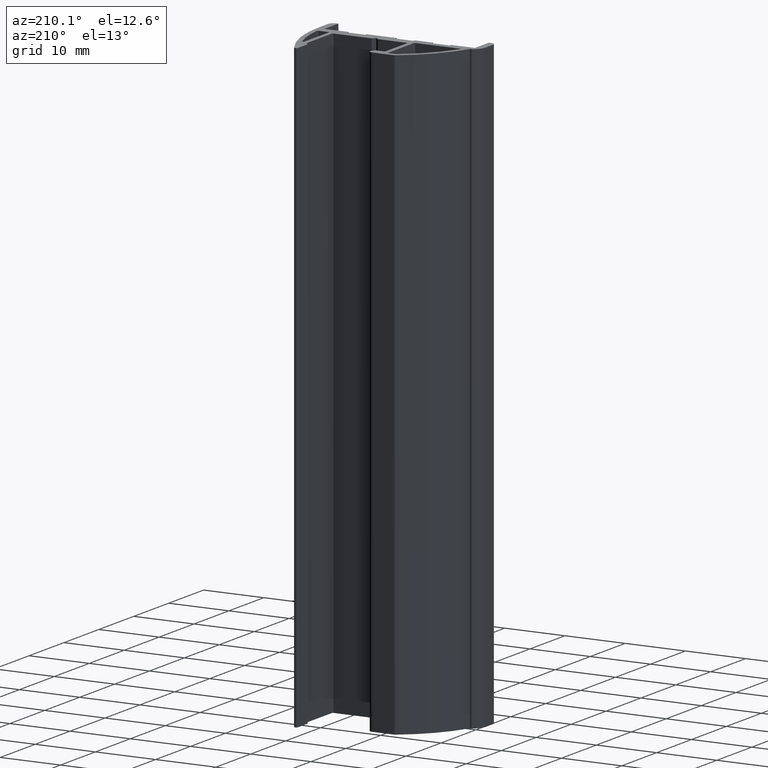
[diagram: clean part render]
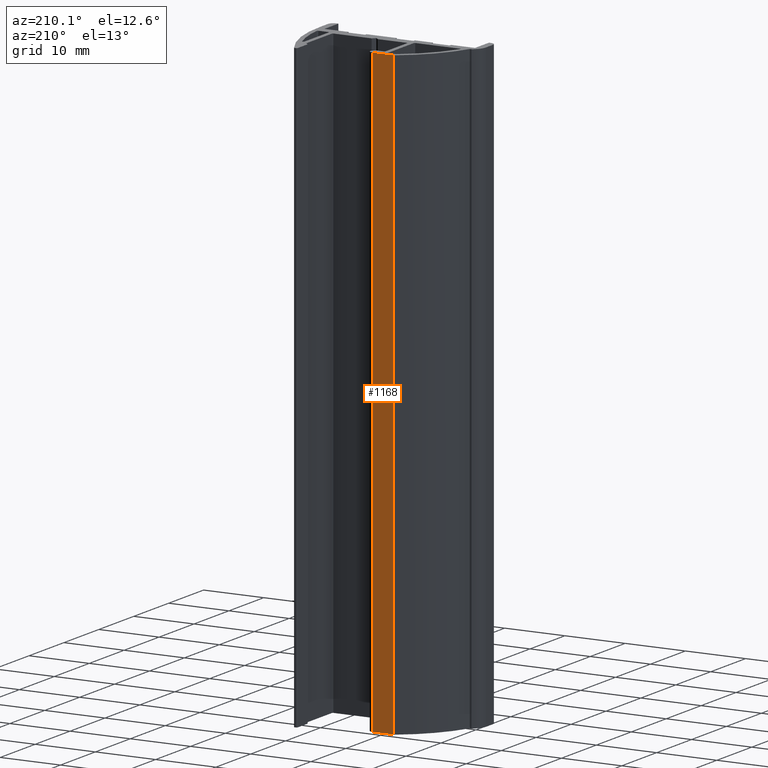
[diagram: same view with one face highlighted and labeled with its STEP entity id]
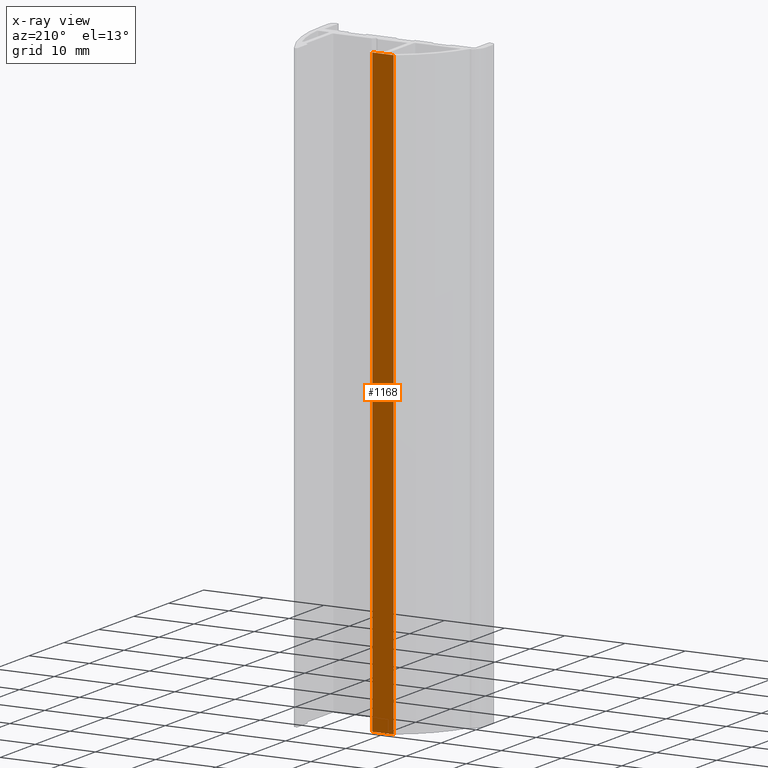
[diagram: x-ray of the same camera — body ghosted, the highlighted face saturated]
A machine part, auxiliary view. The second image highlights one B-rep face of the part: STEP entity #1168.
The next image is the same camera in x-ray: the body ghosted, the highlighted face saturated — about 0% of this face is hidden behind the body in this view.
In plain terms, the highlighted planar face has unit normal (-0, 1, 0).
Its self-contained STEP definition (entity closure, byte-faithful):
#123=FACE_OUTER_BOUND('',#184,.T.);
#184=EDGE_LOOP('',(#964,#965,#966,#967));
#248=LINE('',#1764,#377);
#305=LINE('',#1899,#434);
#306=LINE('',#1902,#435);
#307=LINE('',#1903,#436);
#377=VECTOR('',#1415,3.53870038560117);
#434=VECTOR('',#1546,100.);
#435=VECTOR('',#1549,3.53870038560117);
#436=VECTOR('',#1550,100.);
#517=VERTEX_POINT('',#1761);
#518=VERTEX_POINT('',#1763);
#559=VERTEX_POINT('',#1897);
#560=VERTEX_POINT('',#1901);
#645=EDGE_CURVE('',#517,#518,#248,.T.);
#713=EDGE_CURVE('',#517,#559,#305,.T.);
#714=EDGE_CURVE('',#560,#559,#306,.T.);
#715=EDGE_CURVE('',#518,#560,#307,.T.);
#964=ORIENTED_EDGE('',*,*,#713,.T.);
#965=ORIENTED_EDGE('',*,*,#714,.F.);
#966=ORIENTED_EDGE('',*,*,#715,.F.);
#967=ORIENTED_EDGE('',*,*,#645,.F.);
#1115=PLANE('',#1265);
#1168=ADVANCED_FACE('',(#123),#1115,.T.);
#1265=AXIS2_PLACEMENT_3D('',#1900,#1547,#1548);
#1415=DIRECTION('',(1.,1.56868751751718E-16,0.));
#1546=DIRECTION('',(0.,0.,1.));
#1547=DIRECTION('center_axis',(-1.56868751751718E-16,1.,0.));
#1548=DIRECTION('ref_axis',(-1.,-1.77635683940025E-16,0.));
#1549=DIRECTION('',(-1.,-1.56868751751718E-16,0.));
#1550=DIRECTION('',(0.,0.,1.));
#1761=CARTESIAN_POINT('',(-4.88870038560496,4.75000000000042,-50.));
#1763=CARTESIAN_POINT('',(-1.35000000000379,4.75000000000042,-50.));
#1764=CARTESIAN_POINT('',(-1.35000000000379,4.75000000000042,-50.));
#1897=CARTESIAN_POINT('',(-4.88870038560496,4.75000000000042,50.));
#1899=CARTESIAN_POINT('',(-4.88870038560496,4.75000000000042,0.));
#1900=CARTESIAN_POINT('Origin',(-1.35000000000379,4.75000000000042,0.));
#1901=CARTESIAN_POINT('',(-1.35000000000379,4.75000000000042,50.));
#1902=CARTESIAN_POINT('',(-1.35000000000379,4.75000000000042,50.));
#1903=CARTESIAN_POINT('',(-1.35000000000379,4.75000000000042,0.));